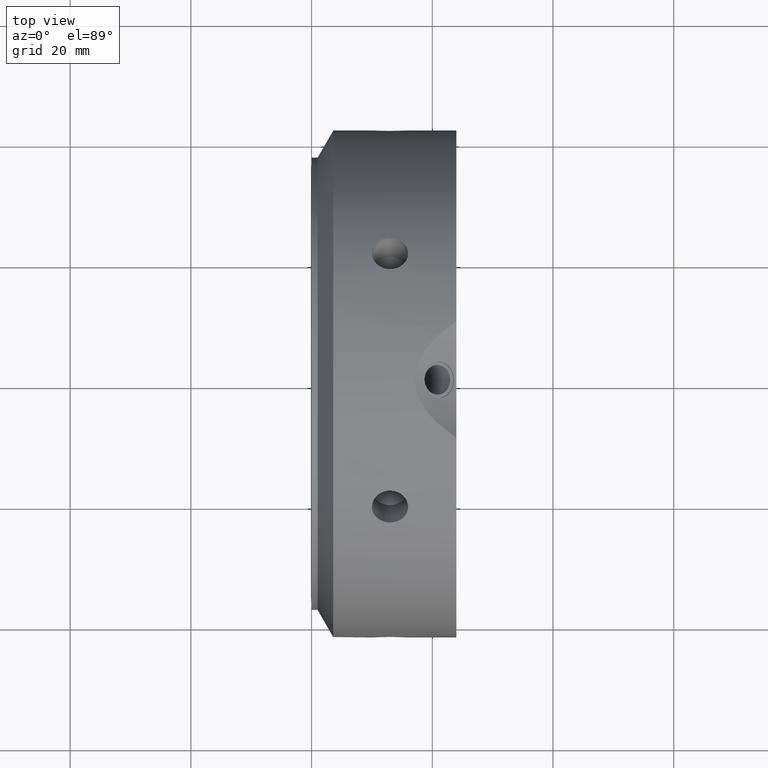
[diagram: clean part render]
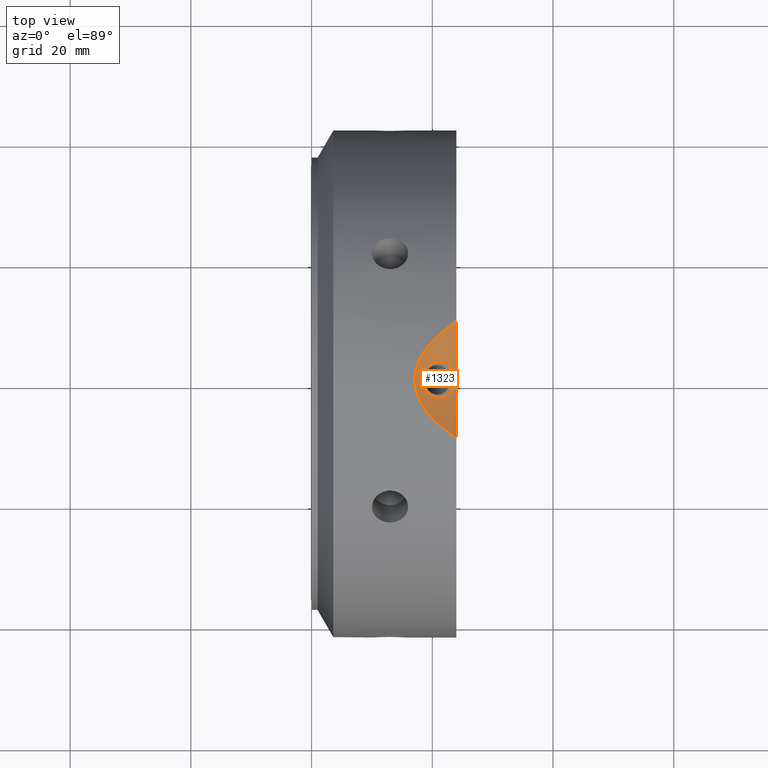
[diagram: same view with one face highlighted and labeled with its STEP entity id]
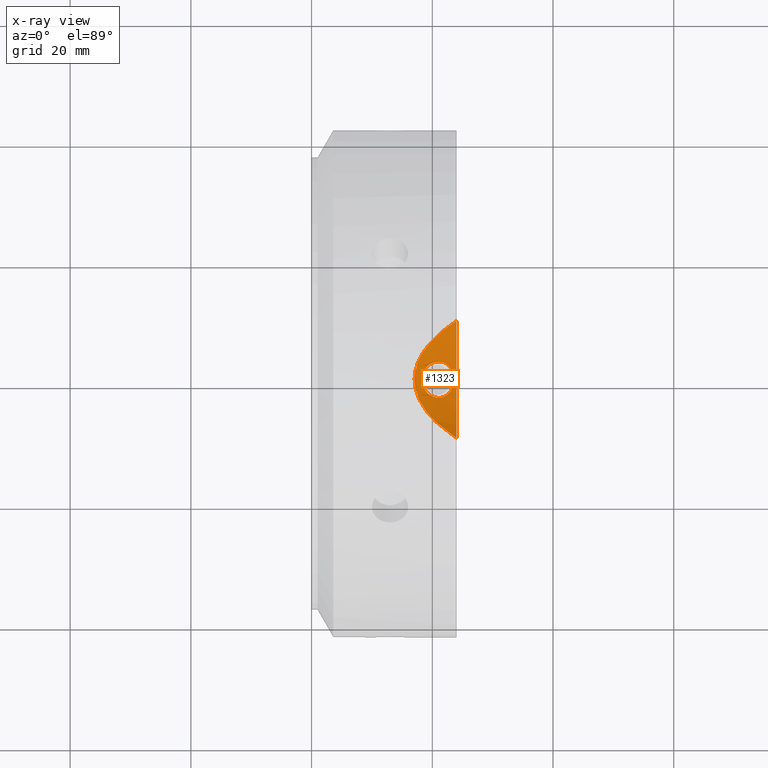
[diagram: x-ray of the same camera — body ghosted, the highlighted face saturated]
A machine part, top view. The second image highlights one B-rep face of the part: STEP entity #1323.
The next image is the same camera in x-ray: the body ghosted, the highlighted face saturated — about 0% of this face is hidden behind the body in this view.
In plain terms, the highlighted cylindrical surface (partial cylindrical patch) has radius 20 mm, axis along (-0.866, 0, 0.5).
Its self-contained STEP definition (entity closure, byte-faithful):
#1131=CARTESIAN_POINT('',(23.999999999999993,-9.661810744480739,40.873578423449018));
#1132=VERTEX_POINT('',#1131);
#1140=CARTESIAN_POINT('',(23.999999999999993,9.661810744480739,40.873578423449018));
#1141=VERTEX_POINT('',#1140);
#1142=CARTESIAN_POINT('',(23.999999999999993,-9.661810744480739,40.873578423449018));
#1143=CARTESIAN_POINT('',(23.961534238392357,-9.636385805380087,40.879588441638163));
#1144=CARTESIAN_POINT('',(23.923150888673419,-9.610891180002399,40.885589884136508));
#1145=CARTESIAN_POINT('',(22.639525166283843,-8.754078853534695,41.086433815220019));
#1146=CARTESIAN_POINT('',(21.481657816824939,-7.850656475330381,41.272149897746914));
#1147=CARTESIAN_POINT('',(19.572673669369742,-5.971478286304874,41.582919908540518));
#1148=CARTESIAN_POINT('',(18.69101355975581,-4.908424265642248,41.728877118549505));
#1149=CARTESIAN_POINT('',(17.748733226706612,-3.145788243736505,41.886178933963798));
#1150=CARTESIAN_POINT('',(17.496890978515047,-2.52973182813308,41.928463922915));
#1151=CARTESIAN_POINT('',(17.158217337960696,-1.273038946287002,41.98541415715718));
#1152=CARTESIAN_POINT('',(17.071796769724511,-0.632288203710325,42.000000000000014));
#1153=CARTESIAN_POINT('',(17.071796769724507,0.632288203710325,42.000000000000014));
#1154=CARTESIAN_POINT('',(17.158217337960696,1.273038946287003,41.98541415715718));
#1155=CARTESIAN_POINT('',(17.496890978515047,2.52973182813308,41.928463922915));
#1156=CARTESIAN_POINT('',(17.748733226706612,3.145788243736504,41.886178933963798));
#1157=CARTESIAN_POINT('',(18.69101355975581,4.908424265642248,41.728877118549505));
#1158=CARTESIAN_POINT('',(19.572673669369742,5.971478286304874,41.582919908540518));
#1159=CARTESIAN_POINT('',(21.481657816824935,7.850656475330382,41.272149897746914));
#1160=CARTESIAN_POINT('',(22.639525166283839,8.754078853534699,41.086433815220019));
#1161=CARTESIAN_POINT('',(23.923150888673412,9.610891180002405,40.885589884136508));
#1162=CARTESIAN_POINT('',(23.96153423839236,9.636385805380089,40.879588441638163));
#1163=CARTESIAN_POINT('',(23.999999999999993,9.661810744480739,40.873578423449018));
#1164=B_SPLINE_CURVE_WITH_KNOTS('',3,(#1142,#1143,#1144,#1145,#1146,#1147,#1148,#1149,#1150,#1151,#1152,#1153,#1154,#1155,#1156,#1157,#1158,#1159,#1160,#1161,#1162,#1163),.UNSPECIFIED.,.F.,.U.,(4,2,2,2,2,2,2,2,2,2,4),(1.27568442540128,1.288897591768966,1.718530122358621,2.097903044584816,2.287589505697913,2.47727596681101,2.666962427924108,2.856648889037205,3.236021811263399,3.665654341853054,3.678867508220741),.UNSPECIFIED.);
#1165=EDGE_CURVE('',#1132,#1141,#1164,.T.);
#1240=CARTESIAN_POINT('',(21.07144796590439,-3.049999999999997,39.960920081127973));
#1241=VERTEX_POINT('',#1240);
#1242=CARTESIAN_POINT('',(21.07144796590439,-3.049999999999997,39.960920081127973));
#1243=CARTESIAN_POINT('',(20.739230183111381,-3.049999999999997,40.152726107453098));
#1244=CARTESIAN_POINT('',(20.379068056264359,-2.973212289127576,40.346438086433778));
#1245=CARTESIAN_POINT('',(19.706285833795544,-2.661764229106429,40.683696209676626));
#1246=CARTESIAN_POINT('',(19.393950831730887,-2.427136046072491,40.82784045351918));
#1247=CARTESIAN_POINT('',(18.896168556982396,-1.886220360873068,41.047487632946428));
#1248=CARTESIAN_POINT('',(18.677383582864188,-1.543656018859238,41.137805217659391));
#1249=CARTESIAN_POINT('',(18.385683916551216,-0.792373029210804,41.255468448913689));
#1250=CARTESIAN_POINT('',(18.313105190361831,-0.383604901658564,41.283330249197689));
#1251=CARTESIAN_POINT('',(18.313105190361831,0.383604901658564,41.283330249197697));
#1252=CARTESIAN_POINT('',(18.385683916551212,0.792373029210803,41.255468448913689));
#1253=CARTESIAN_POINT('',(18.677383582864184,1.543656018859237,41.137805217659391));
#1254=CARTESIAN_POINT('',(18.896168556982396,1.886220360873068,41.047487632946428));
#1255=CARTESIAN_POINT('',(19.393950831730887,2.427136046072491,40.82784045351918));
#1256=CARTESIAN_POINT('',(19.706285833795544,2.661764229106429,40.683696209676626));
#1257=CARTESIAN_POINT('',(20.379068056264359,2.973212289127576,40.346438086433778));
#1258=CARTESIAN_POINT('',(20.739230183111381,3.049999999999997,40.152726107453098));
#1259=CARTESIAN_POINT('',(21.403665748697396,3.049999999999997,39.769114054802856));
#1260=CARTESIAN_POINT('',(21.751506306935532,2.973212289127576,39.554060492962634));
#1261=CARTESIAN_POINT('',(22.379971520530898,2.661764229106431,39.140043058711512));
#1262=CARTESIAN_POINT('',(22.660971598540179,2.427136046072491,38.941625134353728));
#1263=CARTESIAN_POINT('',(23.100082773168022,1.88622036087307,38.620356628581554));
#1264=CARTESIAN_POINT('',(23.287692582997014,1.543656018859241,38.476042075385351));
#1265=CARTESIAN_POINT('',(23.535441763511095,0.792373029210806,38.282254369710017));
#1266=CARTESIAN_POINT('',(23.595860153446896,0.383604901658565,38.233330249197699));
#1267=CARTESIAN_POINT('',(23.595860153446896,-0.383604901658563,38.233330249197699));
#1268=CARTESIAN_POINT('',(23.535441763511091,-0.792373029210803,38.28225436971001));
#1269=CARTESIAN_POINT('',(23.287692582997018,-1.543656018859236,38.47604207538533));
#1270=CARTESIAN_POINT('',(23.100082773168033,-1.886220360873067,38.620356628581554));
#1271=CARTESIAN_POINT('',(22.660971598540186,-2.427136046072491,38.941625134353728));
#1272=CARTESIAN_POINT('',(22.379971520530901,-2.661764229106431,39.140043058711512));
#1273=CARTESIAN_POINT('',(21.751506306935532,-2.973212289127576,39.554060492962634));
#1274=CARTESIAN_POINT('',(21.403665748697396,-3.049999999999997,39.769114054802849));
#1275=CARTESIAN_POINT('',(21.07144796590439,-3.049999999999997,39.960920081127973));
#1276=B_SPLINE_CURVE_WITH_KNOTS('',3,(#1242,#1243,#1244,#1245,#1246,#1247,#1248,#1249,#1250,#1251,#1252,#1253,#1254,#1255,#1256,#1257,#1258,#1259,#1260,#1261,#1262,#1263,#1264,#1265,#1266,#1267,#1268,#1269,#1270,#1271,#1272,#1273,#1274,#1275),.UNSPECIFIED.,.T.,.U.,(4,2,2,2,2,2,2,2,2,2,2,2,2,2,2,2,4),(0.0,0.115083615795074,0.230167231590149,0.345248702087718,0.460330172585287,0.575411643082856,0.690493113580425,0.8055767293755,0.920660345170574,1.035743960965648,1.150827576760722,1.265909047258291,1.380990517755861,1.49607198825343,1.611153458750999,1.726237074546073,1.841320690341148),.UNSPECIFIED.);
#1277=EDGE_CURVE('',#1241,#1241,#1276,.T.);
#1305=CARTESIAN_POINT('',(27.321507575751198,0.0,59.17633747460971));
#1306=DIRECTION('',(-0.866025403784438,0.0,0.500000000000001));
#1307=DIRECTION('',(-0.500000000000001,0.0,-0.866025403784438));
#1308=AXIS2_PLACEMENT_3D('',#1305,#1306,#1307);
#1309=CYLINDRICAL_SURFACE('',#1308,20.0);
#1310=CARTESIAN_POINT('',(23.999999999999993,0.0,61.094010767585054));
#1311=DIRECTION('',(-1.0,0.0,0.0));
#1312=DIRECTION('',(0.0,0.0,-1.0));
#1313=AXIS2_PLACEMENT_3D('',#1310,#1311,#1312);
#1314=ELLIPSE('',#1313,23.09401076758504,20.000000000000004);
#1315=EDGE_CURVE('',#1141,#1132,#1314,.T.);
#1316=ORIENTED_EDGE('',*,*,#1315,.F.);
#1317=ORIENTED_EDGE('',*,*,#1165,.F.);
#1318=EDGE_LOOP('',(#1316,#1317));
#1319=FACE_OUTER_BOUND('',#1318,.T.);
#1320=ORIENTED_EDGE('',*,*,#1277,.T.);
#1321=EDGE_LOOP('',(#1320));
#1322=FACE_BOUND('',#1321,.T.);
#1323=ADVANCED_FACE('',(#1319,#1322),#1309,.F.);